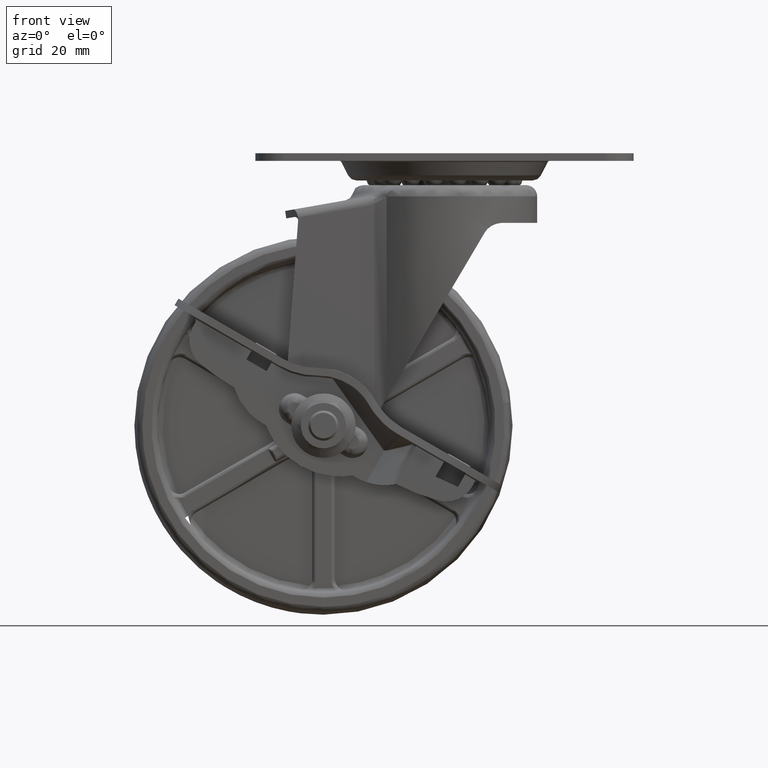
[diagram: clean part render]
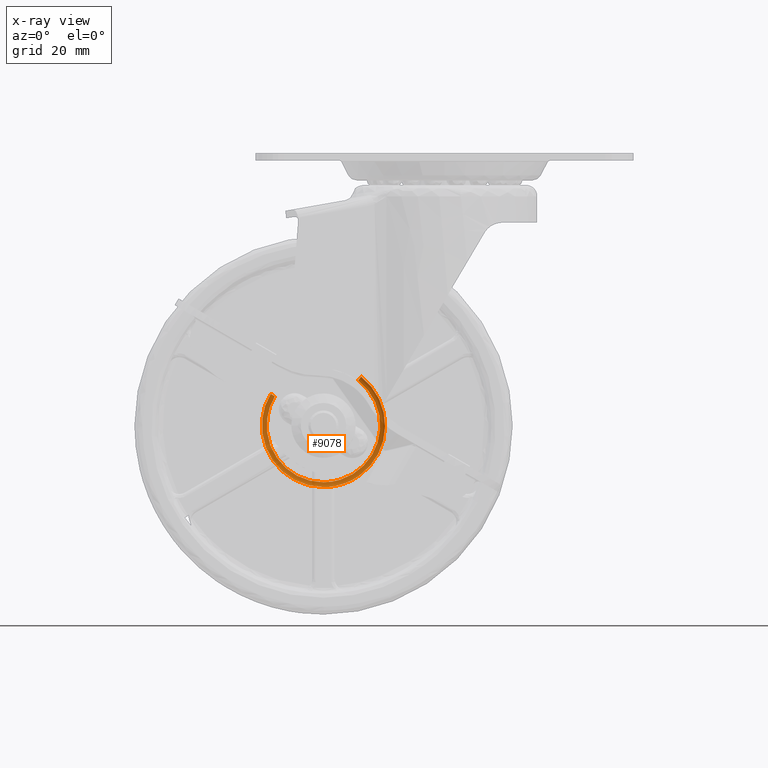
[diagram: x-ray — body ghosted, one internal face saturated and labeled with its STEP entity id]
A machine part, front view, then the same camera in x-ray: the body is ghosted and one INTERNAL B-rep face — a face not visible from any outside direction — is saturated and labeled: STEP entity #9078.
In plain terms, the highlighted face is a freeform B-spline surface patch.
Its self-contained STEP definition (entity closure, byte-faithful):
#6905=CARTESIAN_POINT('',(-43.002468632122422,13.772619271726951,-82.007087550983442));
#6906=VERTEX_POINT('',#6905);
#6912=CARTESIAN_POINT('',(-45.965433526236367,13.772619273203169,-61.621985088745753));
#6913=VERTEX_POINT('',#6912);
#6914=CARTESIAN_POINT('',(-43.002468632122422,13.772619271726951,-82.007087550983442));
#6915=CARTESIAN_POINT('',(-44.202002233730951,13.772619271759140,-80.908979234856474));
#6916=CARTESIAN_POINT('',(-45.750491796025841,13.772619271840400,-78.989123059853043));
#6917=CARTESIAN_POINT('',(-47.310363499347993,13.772619272021711,-75.797189598791348));
#6918=CARTESIAN_POINT('',(-48.127668754624708,13.772619272210660,-72.934347649141117));
#6919=CARTESIAN_POINT('',(-48.393945597281217,13.772619272460609,-69.619283339748975));
#6920=CARTESIAN_POINT('',(-47.913495003797529,13.772619272789610,-65.735396132874271));
#6921=CARTESIAN_POINT('',(-46.832687532527991,13.772619273049409,-63.065885044022771));
#6922=CARTESIAN_POINT('',(-45.965433526236367,13.772619273203169,-61.621985088745753));
#6923=B_SPLINE_CURVE_WITH_KNOTS('',3,(#6914,#6915,#6916,#6917,#6918,#6919,#6920,#6921,#6922),.UNSPECIFIED.,.F.,.U.,(4,1,1,1,1,1,4),(0.000000196225567,4.878447842463356,7.317717343996849,10.628071717493670,13.764206716182770,17.248836293724100,22.301523659242928),.UNSPECIFIED.);
#6924=EDGE_CURVE('',#6906,#6913,#6923,.T.);
#6939=CARTESIAN_POINT('',(-22.065512260515138,13.772619276254110,-57.095333374192343));
#6940=VERTEX_POINT('',#6939);
#6950=CARTESIAN_POINT('',(-26.573753131277950,13.772619271292610,-85.355139608157415));
#6951=VERTEX_POINT('',#6950);
#6952=CARTESIAN_POINT('',(-22.065512260515138,13.772619276254110,-57.095333374192343));
#6953=CARTESIAN_POINT('',(-21.344397596657490,13.772619276039990,-57.650435310203846));
#6954=CARTESIAN_POINT('',(-19.759261393687741,13.772619275524470,-59.097343652969322));
#6955=CARTESIAN_POINT('',(-17.969008638966390,13.772619274782899,-61.532528149075297));
#6956=CARTESIAN_POINT('',(-16.780348167372338,13.772619274111950,-64.050652599463646));
#6957=CARTESIAN_POINT('',(-15.988741004536161,13.772619273487170,-66.621570568519630));
#6958=CARTESIAN_POINT('',(-15.624245394788369,13.772619272885560,-69.388625989882470));
#6959=CARTESIAN_POINT('',(-15.821698324889031,13.772619272280039,-72.580102499901571));
#6960=CARTESIAN_POINT('',(-16.547033220399879,13.772619271821601,-75.415737477479041));
#6961=CARTESIAN_POINT('',(-17.766552679621359,13.772619271470379,-78.070445319274015));
#6962=CARTESIAN_POINT('',(-19.130103655437161,13.772619271269420,-80.070987338643263));
#6963=CARTESIAN_POINT('',(-20.944531825441061,13.772619271136991,-82.055219124202964));
#6964=CARTESIAN_POINT('',(-23.274135740409740,13.772619271105160,-83.903821949585492));
#6965=CARTESIAN_POINT('',(-25.415304461034669,13.772619271207200,-84.946007857129800));
#6966=CARTESIAN_POINT('',(-26.573753131277950,13.772619271292610,-85.355139608157415));
#6967=B_SPLINE_CURVE_WITH_KNOTS('',3,(#6952,#6953,#6954,#6955,#6956,#6957,#6958,#6959,#6960,#6961,#6962,#6963,#6964,#6965,#6966),.UNSPECIFIED.,.F.,.U.,(4,1,1,1,1,1,1,1,1,1,1,1,4),(0.000000386182116,2.730104705690593,6.415935101076716,9.009646132301636,11.057318883651620,14.470045488379100,17.336857654944829,20.612885574722331,23.206616784550832,26.073356773610520,27.848009261900881,31.260808660329850,34.946488815124241),.UNSPECIFIED.);
#6968=EDGE_CURVE('',#6940,#6951,#6967,.T.);
#7002=CARTESIAN_POINT('',(-32.0,13.772619271889520,-86.285713599797759));
#7003=VERTEX_POINT('',#7002);
#7004=CARTESIAN_POINT('',(-26.573753131277950,13.772619271292610,-85.355139608157415));
#7005=CARTESIAN_POINT('',(-28.312236681906910,13.772619271420810,-85.970350282654650));
#7006=CARTESIAN_POINT('',(-30.155893531487649,13.772619271623769,-86.286387128871567));
#7007=CARTESIAN_POINT('',(-32.0,13.772619271889520,-86.285713599797759));
#7008=B_SPLINE_CURVE_WITH_KNOTS('',3,(#7004,#7005,#7006,#7007),.UNSPECIFIED.,.F.,.U.,(4,4),(0.000000010905924,5.532047290495514),.UNSPECIFIED.);
#7009=EDGE_CURVE('',#6951,#7003,#7008,.T.);
#7011=CARTESIAN_POINT('',(-32.0,13.772619271889520,-86.285713599797759));
#7012=CARTESIAN_POINT('',(-33.447150914439327,13.772619271823631,-86.286157233533643));
#7013=CARTESIAN_POINT('',(-36.278236035260591,13.772619271724841,-85.905891129648595));
#7014=CARTESIAN_POINT('',(-40.026638450886423,13.772619271677399,-84.347354274856585));
#7015=CARTESIAN_POINT('',(-42.121206410142250,13.772619271703251,-82.814820310111330));
#7016=CARTESIAN_POINT('',(-43.002468632122422,13.772619271726951,-82.007087550983442));
#7017=B_SPLINE_CURVE_WITH_KNOTS('',3,(#7011,#7012,#7013,#7014,#7015,#7016),.UNSPECIFIED.,.F.,.U.,(4,1,1,4),(0.000000057649547,4.341357388668387,8.493909903604644,12.080238852815270),.UNSPECIFIED.);
#7018=EDGE_CURVE('',#7003,#6906,#7017,.T.);
#8984=CARTESIAN_POINT('',(-22.043461139198101,13.708999449074303,-57.066689484480008));
#8985=CARTESIAN_POINT('',(-10.526455460909700,13.708999449074305,-65.932904708985063));
#8986=CARTESIAN_POINT('',(-18.003568050584942,13.708999449074300,-78.396611201128238));
#8987=CARTESIAN_POINT('',(-26.400179251713183,13.708999449074303,-92.393043150543264));
#8988=CARTESIAN_POINT('',(-40.396611201128231,13.708999449074300,-83.996431949415040));
#8989=CARTESIAN_POINT('',(-54.393043150543285,13.708999449074303,-75.599820748286803));
#8990=CARTESIAN_POINT('',(-45.996431949415054,13.708999449074300,-61.603388798871777));
#8991=CARTESIAN_POINT('',(-22.316859117995431,14.544596528647176,-57.421827048199283));
#8992=CARTESIAN_POINT('',(-11.116100492850954,14.544596528647176,-66.044583641562440));
#8993=CARTESIAN_POINT('',(-18.387898012918491,14.544596528647173,-78.166047491868483));
#8994=CARTESIAN_POINT('',(-26.553945504786970,14.544596528647173,-91.778149478949942));
#8995=CARTESIAN_POINT('',(-40.166047491868454,14.544596528647173,-83.612101987081502));
#8996=CARTESIAN_POINT('',(-53.778149478949956,14.544596528647173,-75.446054495213033));
#8997=CARTESIAN_POINT('',(-45.612101987081502,14.544596528647173,-61.833952508131532));
#8998=CARTESIAN_POINT('',(-22.894582858895884,14.498203519343505,-58.172276640945782));
#8999=CARTESIAN_POINT('',(-12.362093367981121,14.498203519343495,-66.280575037666381));
#9000=CARTESIAN_POINT('',(-19.200034754222145,14.498203519343503,-77.678837859904888));
#9001=CARTESIAN_POINT('',(-26.878872614127015,14.498203519343498,-90.478803105682729));
#9002=CARTESIAN_POINT('',(-39.678837859904874,14.498203519343503,-82.799965245777884));
#9003=CARTESIAN_POINT('',(-52.478803105682722,14.498203519343498,-75.121127385872981));
#9004=CARTESIAN_POINT('',(-44.799965245777869,14.498203519343503,-62.321162140095133));
#9012=(BOUNDED_SURFACE()B_SPLINE_SURFACE(2,2,((#8984,#8991,#8998),(#8985,#8992,#8999),(#8986,#8993,#9000),(#8987,#8994,#9001),(#8988,#8995,#9002),(#8989,#8996,#9003),(#8990,#8997,#9004)),.UNSPECIFIED.,.F.,.F.,.U.)B_SPLINE_SURFACE_WITH_KNOTS((3,2,2,3),(3,3),(0.0,24.879511066827678,51.922457878596887,78.965404690366114),(0.0,1.737396234537102),.UNSPECIFIED.)GEOMETRIC_REPRESENTATION_ITEM()RATIONAL_B_SPLINE_SURFACE(((0.885353552475045,0.747105966538171,0.882369431047570),(0.675926437377389,0.570380807637602,0.673648198859526),(0.925244431541265,0.780767901566850,0.922125856226245),(0.654246611797921,0.552086277730711,0.652041446045029),(0.925244431541265,0.780767901566850,0.922125856226245),(0.654246611797921,0.552086277730711,0.652041446045029),(0.925244431541265,0.780767901566850,0.922125856226245)))REPRESENTATION_ITEM('')SURFACE());
#9013=ORIENTED_EDGE('',*,*,#6968,.F.);
#9014=CARTESIAN_POINT('',(-22.849813641258990,14.500000000000000,-58.114122476511007));
#9015=VERTEX_POINT('',#9014);
#9016=CARTESIAN_POINT('',(-22.065512260515138,13.772619276254110,-57.095333374192343));
#9017=CARTESIAN_POINT('',(-22.121069364138361,13.924369605765291,-57.167500749036662));
#9018=CARTESIAN_POINT('',(-22.271981051687298,14.207408201638060,-57.363531492412413));
#9019=CARTESIAN_POINT('',(-22.555349875110149,14.450848799546559,-57.731620949254641));
#9020=CARTESIAN_POINT('',(-22.761488665933410,14.500024852594519,-57.999390404723897));
#9021=CARTESIAN_POINT('',(-22.849813641258990,14.500000000000000,-58.114122476511007));
#9022=B_SPLINE_CURVE_WITH_KNOTS('',3,(#9016,#9017,#9018,#9019,#9020,#9021),.UNSPECIFIED.,.F.,.U.,(4,1,1,4),(0.000000323199631,0.530970009557947,1.110182310340109,1.544610626211849),.UNSPECIFIED.);
#9023=EDGE_CURVE('',#6940,#9015,#9022,.T.);
#9024=ORIENTED_EDGE('',*,*,#9023,.T.);
#9025=CARTESIAN_POINT('',(-32.0,14.500000000000000,-84.999999650934100));
#9026=VERTEX_POINT('',#9025);
#9027=CARTESIAN_POINT('',(-22.849813641258990,14.500000000000000,-58.114122476511007));
#9028=CARTESIAN_POINT('',(-22.041931967094690,14.500000000000020,-58.735887697080713));
#9029=CARTESIAN_POINT('',(-20.553730914921442,14.499999999999980,-60.145039203423352));
#9030=CARTESIAN_POINT('',(-18.739421900686619,14.500000000000020,-62.746781346789319));
#9031=CARTESIAN_POINT('',(-17.460192517228119,14.500000000000020,-65.812376375092981));
#9032=CARTESIAN_POINT('',(-16.956314476719381,14.500000000000000,-68.800478397294526));
#9033=CARTESIAN_POINT('',(-17.023324203396179,14.500000000000130,-71.817621288319700));
#9034=CARTESIAN_POINT('',(-17.674596913459499,14.499999999999600,-74.925254003963161));
#9035=CARTESIAN_POINT('',(-18.993390935733231,14.500000000000879,-77.659473583223445));
#9036=CARTESIAN_POINT('',(-20.617153955777830,14.499999999999000,-79.845547718306236));
#9037=CARTESIAN_POINT('',(-22.363266412833180,14.500000000001140,-81.612719709592213));
#9038=CARTESIAN_POINT('',(-24.415620733241081,14.499999999999631,-83.022600047677898));
#9039=CARTESIAN_POINT('',(-26.838953252282970,14.499999999999829,-84.154342564325546));
#9040=CARTESIAN_POINT('',(-29.232949643519621,14.500000000000570,-84.834170030661170));
#9041=CARTESIAN_POINT('',(-31.126195991794152,14.499999999999520,-85.000063371660445));
#9042=CARTESIAN_POINT('',(-32.0,14.500000000000000,-84.999999650934100));
#9043=B_SPLINE_CURVE_WITH_KNOTS('',3,(#9027,#9028,#9029,#9030,#9031,#9032,#9033,#9034,#9035,#9036,#9037,#9038,#9039,#9040,#9041,#9042),.UNSPECIFIED.,.F.,.U.,(4,1,1,1,1,1,1,1,1,1,1,1,1,4),(0.000000539266182,3.058314538034480,6.116699461020527,9.466365378646913,12.961674583169600,15.146281377169361,18.495948743338531,22.427891825484139,24.175561405954859,26.651438821994191,29.855474613145219,31.603142795518430,34.661466591934939,37.282891265946937),.UNSPECIFIED.);
#9044=EDGE_CURVE('',#9015,#9026,#9043,.T.);
#9045=ORIENTED_EDGE('',*,*,#9044,.T.);
#9046=CARTESIAN_POINT('',(-44.862899698603343,14.500000000000000,-62.283407082855192));
#9047=VERTEX_POINT('',#9046);
#9048=CARTESIAN_POINT('',(-32.0,14.500000000000000,-84.999999650934100));
#9049=CARTESIAN_POINT('',(-33.154523384653828,14.500000000000020,-85.000229978947218));
#9050=CARTESIAN_POINT('',(-35.216075220842839,14.499999999999950,-84.760752459901695));
#9051=CARTESIAN_POINT('',(-38.437224294682068,14.500000000000020,-83.687796584218461));
#9052=CARTESIAN_POINT('',(-41.141564947335162,14.500000000000030,-82.051053508339010));
#9053=CARTESIAN_POINT('',(-43.228165811018513,14.499999999999980,-80.039470672664848));
#9054=CARTESIAN_POINT('',(-44.772907277484983,14.500000000000000,-77.995530627500059));
#9055=CARTESIAN_POINT('',(-46.079840585527492,14.499999999999959,-75.499362997477306));
#9056=CARTESIAN_POINT('',(-46.870606624768413,14.500000000000069,-72.617254311355026));
#9057=CARTESIAN_POINT('',(-47.090183535142771,14.499999999999639,-69.480456220293817));
#9058=CARTESIAN_POINT('',(-46.645263260446988,14.500000000000460,-66.022243412535843));
#9059=CARTESIAN_POINT('',(-45.627134053296338,14.499999999999741,-63.556023252865472));
#9060=CARTESIAN_POINT('',(-44.862899698603343,14.500000000000000,-62.283407082855192));
#9061=B_SPLINE_CURVE_WITH_KNOTS('',3,(#9048,#9049,#9050,#9051,#9052,#9053,#9054,#9055,#9056,#9057,#9058,#9059,#9060),.UNSPECIFIED.,.F.,.U.,(4,1,1,1,1,1,1,1,1,1,4),(0.000000132198288,3.463573475307715,6.185055129930074,10.143547001441201,12.865029817523091,14.844247933923590,17.812987774989519,21.276654056711781,23.750709154378129,27.214360749280079,31.667612175920649),.UNSPECIFIED.);
#9062=EDGE_CURVE('',#9026,#9047,#9061,.T.);
#9063=ORIENTED_EDGE('',*,*,#9062,.T.);
#9064=CARTESIAN_POINT('',(-45.965433526236367,13.772619273203169,-61.621985088745753));
#9065=CARTESIAN_POINT('',(-45.901501438925997,13.896746878527180,-61.660338640752691));
#9066=CARTESIAN_POINT('',(-45.724909683702293,14.148432649167340,-61.766277948609812));
#9067=CARTESIAN_POINT('',(-45.345696459918813,14.427544843215550,-61.993772071980537));
#9068=CARTESIAN_POINT('',(-45.028495566866688,14.500198066256329,-62.184064326291839));
#9069=CARTESIAN_POINT('',(-44.862899698603343,14.500000000000000,-62.283407082855192));
#9070=B_SPLINE_CURVE_WITH_KNOTS('',3,(#9064,#9065,#9066,#9067,#9068,#9069),.UNSPECIFIED.,.F.,.U.,(4,1,1,4),(0.000000323198556,0.434428640138426,0.965349406065430,1.544610630008420),.UNSPECIFIED.);
#9071=EDGE_CURVE('',#6913,#9047,#9070,.T.);
#9072=ORIENTED_EDGE('',*,*,#9071,.F.);
#9073=ORIENTED_EDGE('',*,*,#6924,.F.);
#9074=ORIENTED_EDGE('',*,*,#7018,.F.);
#9075=ORIENTED_EDGE('',*,*,#7009,.F.);
#9076=EDGE_LOOP('',(#9013,#9024,#9045,#9063,#9072,#9073,#9074,#9075));
#9077=FACE_OUTER_BOUND('',#9076,.T.);
#9078=ADVANCED_FACE('',(#9077),#9012,.F.);